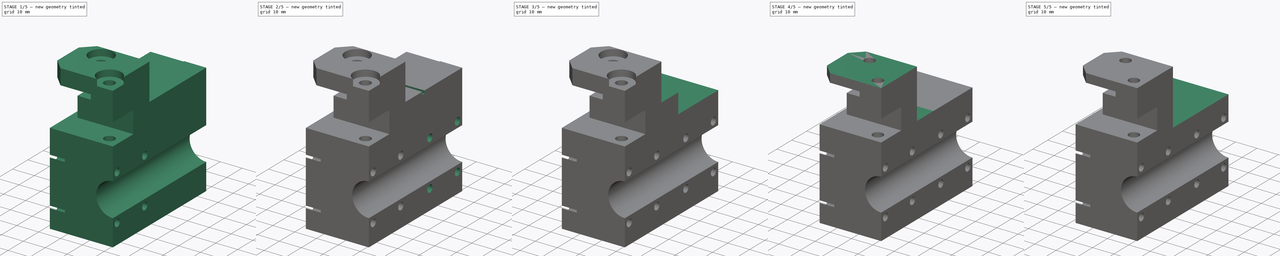
[diagram: build sequence overview — one tinted view per stage of 5, left to right]
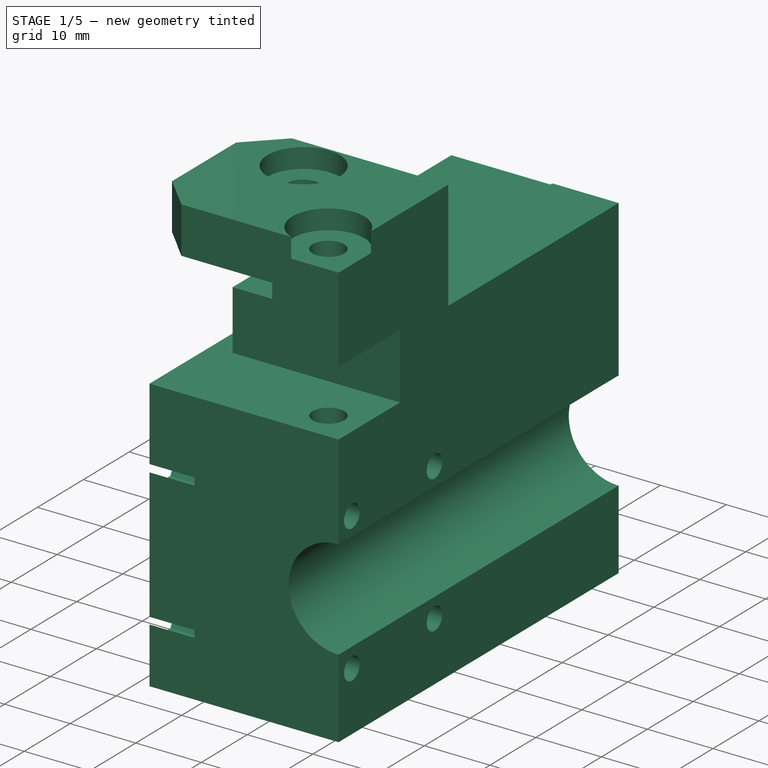
[diagram: stage 1 of 5 — iso view after this stage's code; geometry added in this stage tinted green]
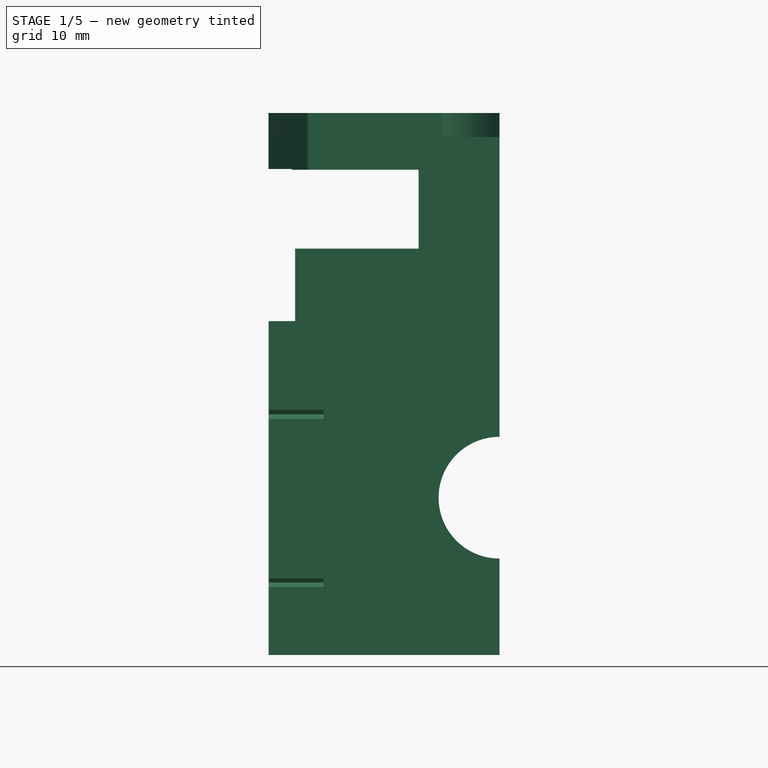
[diagram: stage 1 of 5 — front view after this stage's code; geometry added in this stage tinted green]
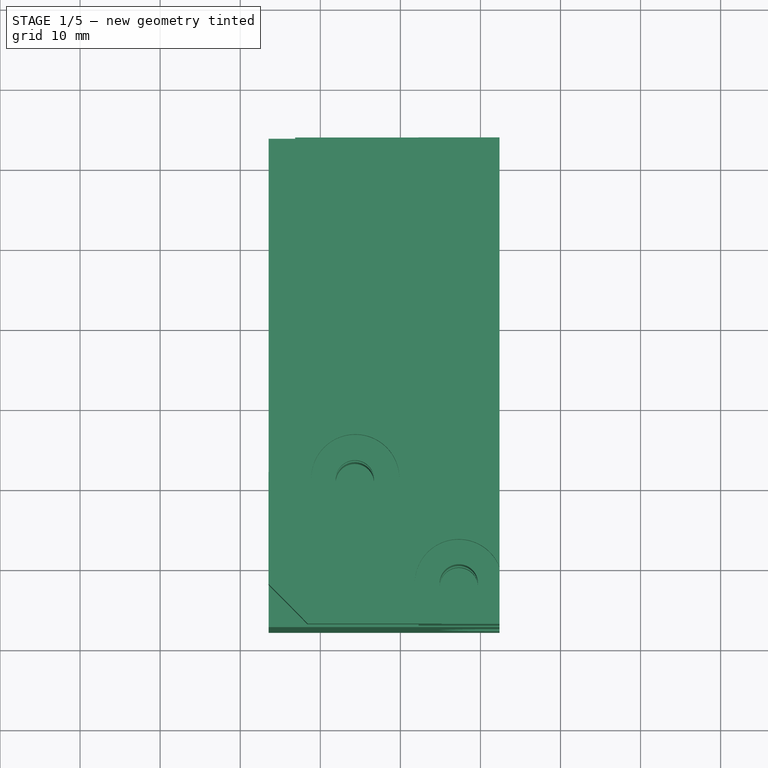
[diagram: stage 1 of 5 — top view after this stage's code; geometry added in this stage tinted green]
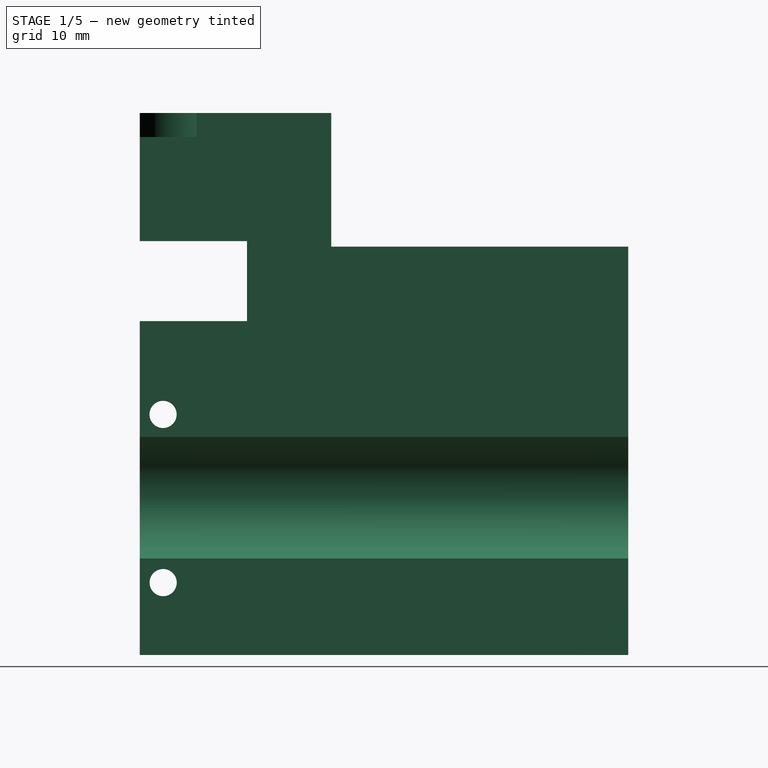
[diagram: stage 1 of 5 — right view after this stage's code; geometry added in this stage tinted green]
FCSTD DOCUMENT  (FreeCAD 2024.2R37179 (Git))
Label: Y_carriage_right
License: All rights reserved
LicenseURL: https://en.wikipedia.org/wiki/All_rights_reserved
objects: PartDesign::Pocket×14, Sketcher::SketchObject×4, PartDesign::Pad×4, Part::Feature×1, PartDesign::FeatureBase×1, PartDesign::Body×1
note: 43 computed .brp shape members not serialized (recipe doc carries the construction recipe); baked Part::Feature solids carry a one-line shape summary decoded from their .brp

FEATURE [Part::Feature] Part__Feature002  label="Y_carriage_right_002"
  Placement = pos=(-153.636,-13.3409,0.0095) rot=(0,0,1;0rad)
  shape: bbox 28.85 x 24 x 67.7 mm, 74 faces (baked)
FEATURE [PartDesign::FeatureBase] BaseFeature
  BaseFeature = -> Part__Feature002
  Suppressed = false
FEATURE [Sketcher::SketchObject] Sketch
  AttachmentSupport = -> [BaseFeature]
  FullyConstrained = false
  MapMode = 5
  Placement = pos=(153.553,0,0) rot=(0.57735,-0.57735,-0.57735;2.0944rad)
  sketch-geometry (4):
    g0: LineSegment StartX=78.8055 StartY=92.8021 StartZ=0 EndX=78.8055 EndY=60.2112 EndZ=0
    g1: LineSegment StartX=78.8055 StartY=60.2112 StartZ=0 EndX=90.7918 EndY=60.2112 EndZ=0
    g2: LineSegment StartX=90.7918 StartY=60.2112 StartZ=0 EndX=90.7918 EndY=92.8021 EndZ=0
    g3: LineSegment StartX=90.7918 StartY=92.8021 StartZ=0 EndX=78.8055 EndY=92.8021 EndZ=0
  constraints (8):
    c: Coincident(g0,g1)
    c: Coincident(g1,g2)
    c: Coincident(g2,g3)
    c: Coincident(g3,g0)
    c: Vertical(g0)
    c: Vertical(g2)
    c: Horizontal(g1)
    c: Horizontal(g3)
FEATURE [PartDesign::Pad] Pad
  BaseFeature = -> BaseFeature
  Direction = (-1,0,0)
  Length = 10
  Length2 = 10
  Profile = -> Sketch
  ReferenceAxis = -> Sketch [N_Axis]
  Refine = true
  Reversed = true
  Suppressed = false
  Type = 0
FEATURE [PartDesign::Pocket] Pocket
  BaseFeature = -> Pad
  Direction = (0,0,-1)
  Length = 44
  Length2 = 5
  Profile = -> Pad [Face36]
  Refine = true
  Suppressed = false
  Type = 0
FEATURE [PartDesign::Pad] Pad001
  BaseFeature = -> Pocket
  Direction = (-4e-16,1,0)
  Length = 37
  Length2 = 10
  Profile = -> Pocket [Face62]
  Refine = true
  Suppressed = false
  Type = 0
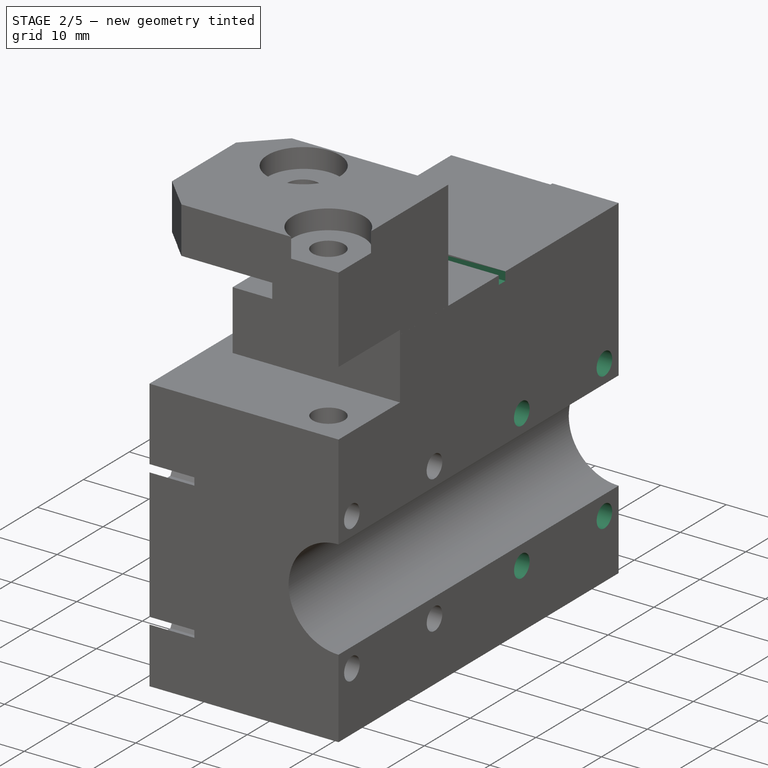
[diagram: stage 2 of 5 — iso view after this stage's code; geometry added in this stage tinted green]
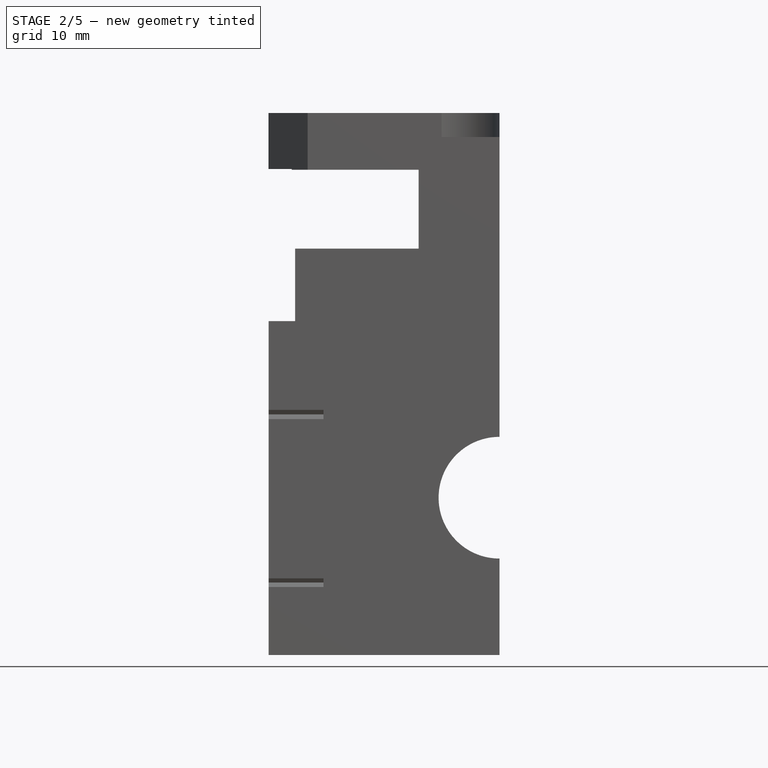
[diagram: stage 2 of 5 — front view after this stage's code; geometry added in this stage tinted green]
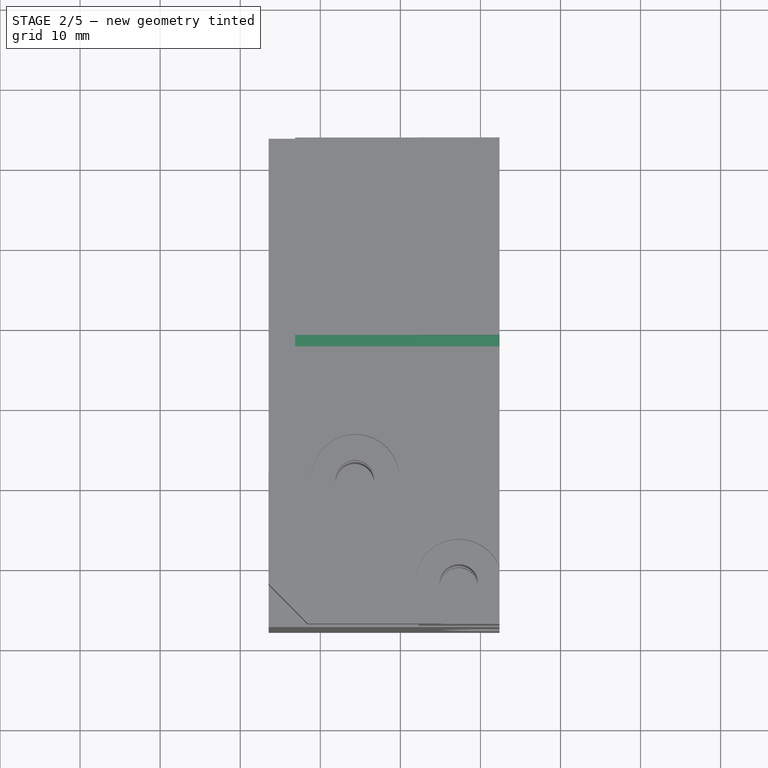
[diagram: stage 2 of 5 — top view after this stage's code; geometry added in this stage tinted green]
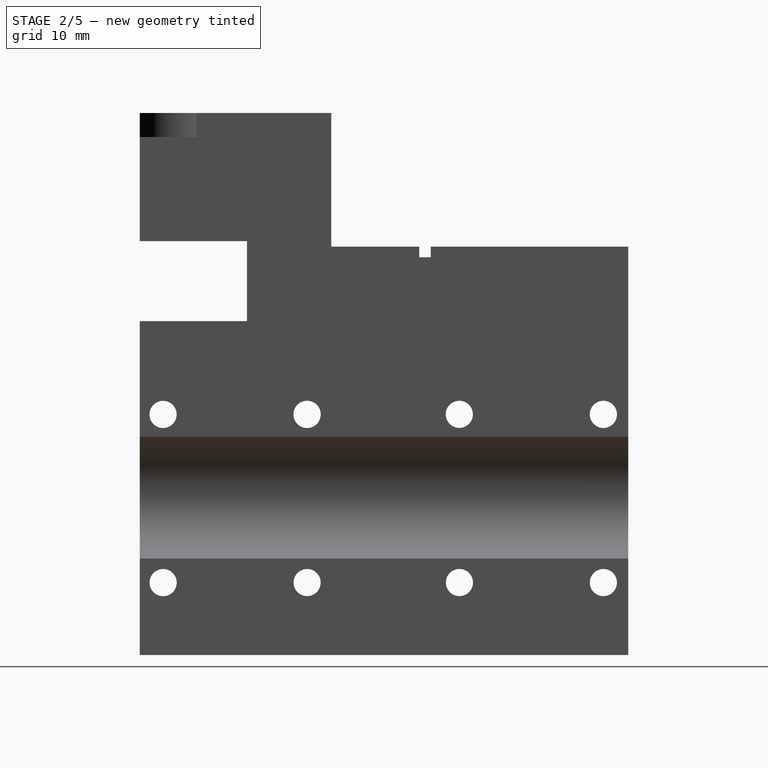
[diagram: stage 2 of 5 — right view after this stage's code; geometry added in this stage tinted green]
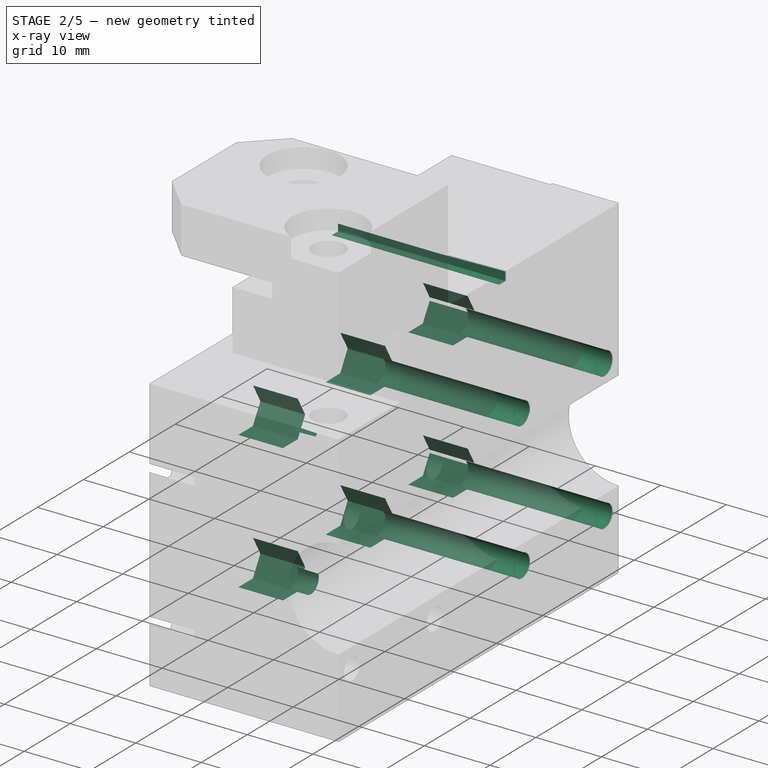
[diagram: stage 2 of 5 — x-ray composite at the iso view; earlier geometry ghosted, this stage's added geometry solid]
FEATURE [PartDesign::Pad] Pad002
  BaseFeature = -> Pad001
  Direction = (-1,0,0)
  Length = 10
  Length2 = 10
  Profile = -> Pad001 [Face58,Face60]
  Refine = true
  Suppressed = false
  Type = 3
  UpToFace = -> Pad001 [Face56]
FEATURE [Sketcher::SketchObject] Sketch001
  AttachmentSupport = -> [Pad002]
  FullyConstrained = false
  MapMode = 5
  Placement = pos=(153.553,7.37e-14,0) rot=(0.57735,-0.57735,-0.57735;2.0944rad)
  sketch-geometry (48):
    g0: Circle CenterX=86.9052 CenterY=88.0523 CenterZ=0 NormalX=0 NormalY=0 NormalZ=1 AngleXU=0 Radius=1.70558
    g1: Circle CenterX=86.9003 CenterY=67.0523 CenterZ=0 NormalX=0 NormalY=0 NormalZ=1 AngleXU=0 Radius=1.69222
    g2: LineSegment StartX=88.5083 StartY=90.863 StartZ=0 EndX=85.2725 EndY=90.846 EndZ=0
    g3: LineSegment StartX=85.2725 StartY=90.846 StartZ=0 EndX=83.6694 EndY=88.0353 EndZ=0
    g4: LineSegment StartX=83.6694 StartY=88.0353 StartZ=0 EndX=85.302 EndY=85.2415 EndZ=0
    g5: LineSegment StartX=85.302 StartY=85.2415 StartZ=0 EndX=88.5378 EndY=85.2585 EndZ=0
    g6: LineSegment StartX=88.5378 StartY=85.2585 StartZ=0 EndX=90.1409 EndY=88.0693 EndZ=0
    g7: LineSegment StartX=90.1409 StartY=88.0693 StartZ=0 EndX=88.5083 EndY=90.863 EndZ=0
    g8: Circle CenterX=86.9052 CenterY=88.0523 CenterZ=0 NormalX=0 NormalY=0 NormalZ=1 AngleXU=0 Radius=3.23581
    g9: LineSegment StartX=88.514 StartY=69.8431 StartZ=0 EndX=85.2903 EndY=69.8453 EndZ=0
    g10: LineSegment StartX=85.2903 StartY=69.8453 StartZ=0 EndX=83.6765 EndY=67.0545 EndZ=0
    g11: LineSegment StartX=83.6765 StartY=67.0545 StartZ=0 EndX=85.2866 EndY=64.2615 EndZ=0
    g12: LineSegment StartX=85.2866 StartY=64.2615 StartZ=0 EndX=88.5104 EndY=64.2594 EndZ=0
    g13: LineSegment StartX=88.5104 StartY=64.2594 StartZ=0 EndX=90.1241 EndY=67.0502 EndZ=0
    g14: LineSegment StartX=90.1241 StartY=67.0502 StartZ=0 EndX=88.514 EndY=69.8431 EndZ=0
    g15: Circle CenterX=86.9003 CenterY=67.0523 CenterZ=0 NormalX=0 NormalY=0 NormalZ=1 AngleXU=0 Radius=3.22377
    g16: Circle CenterX=67.8927 CenterY=88.0604 CenterZ=0 NormalX=0 NormalY=0 NormalZ=1 AngleXU=0 Radius=1.69535
    g17: Circle CenterX=49.9008 CenterY=88.0569 CenterZ=0 NormalX=0 NormalY=0 NormalZ=1 AngleXU=0 Radius=1.69926
    g18: Circle CenterX=67.8804 CenterY=67.0539 CenterZ=0 NormalX=0 NormalY=0 NormalZ=1 AngleXU=0 Radius=1.69387
    g19: Circle CenterX=49.8997 CenterY=67.0509 CenterZ=0 NormalX=0 NormalY=0 NormalZ=1 AngleXU=0 Radius=1.69374
    g20: LineSegment StartX=69.5212 StartY=90.8567 StartZ=0 EndX=66.2853 EndY=90.8689 EndZ=0
    g21: LineSegment StartX=66.2853 StartY=90.8689 StartZ=0 EndX=64.6568 EndY=88.0726 EndZ=0
    g22: LineSegment StartX=64.6568 StartY=88.0726 StartZ=0 EndX=66.2642 EndY=85.2641 EndZ=0
    g23: LineSegment StartX=66.2642 StartY=85.2641 StartZ=0 EndX=69.5001 EndY=85.2519 EndZ=0
    g24: LineSegment StartX=69.5001 StartY=85.2519 StartZ=0 EndX=71.1286 EndY=88.0482 EndZ=0
    g25: LineSegment StartX=71.1286 StartY=88.0482 StartZ=0 EndX=69.5212 EndY=90.8567 EndZ=0
    g26: Circle CenterX=67.8927 CenterY=88.0604 CenterZ=0 NormalX=0 NormalY=0 NormalZ=1 AngleXU=0 Radius=3.23595
    g27: LineSegment StartX=51.5083 StartY=90.863 StartZ=0 EndX=48.2744 EndY=90.852 EndZ=0
    g28: LineSegment StartX=48.2744 StartY=90.852 StartZ=0 EndX=46.667 EndY=88.046 EndZ=0
    g29: LineSegment StartX=46.667 StartY=88.046 StartZ=0 EndX=48.2934 EndY=85.2508 EndZ=0
    g30: LineSegment StartX=48.2934 StartY=85.2508 StartZ=0 EndX=51.5273 EndY=85.2618 EndZ=0
    g31: LineSegment StartX=51.5273 StartY=85.2618 StartZ=0 EndX=53.1347 EndY=88.0679 EndZ=0
    g32: LineSegment StartX=53.1347 StartY=88.0679 StartZ=0 EndX=51.5083 EndY=90.863 EndZ=0
    g33: Circle CenterX=49.9008 CenterY=88.0569 CenterZ=0 NormalX=0 NormalY=0 NormalZ=1 AngleXU=0 Radius=3.23389
    g34: LineSegment StartX=51.514 StartY=69.8431 StartZ=0 EndX=48.2888 EndY=69.8451 EndZ=0
    g35: LineSegment StartX=48.2888 StartY=69.8451 StartZ=0 EndX=46.6744 EndY=67.0529 EndZ=0
    g36: LineSegment StartX=46.6744 StartY=67.0529 StartZ=0 EndX=48.2854 EndY=64.2587 EndZ=0
    g37: LineSegment StartX=48.2854 StartY=64.2587 StartZ=0 EndX=51.5107 EndY=64.2568 EndZ=0
    g38: LineSegment StartX=51.5107 StartY=64.2568 StartZ=0 EndX=53.125 EndY=67.049 EndZ=0
    g39: LineSegment StartX=53.125 StartY=67.049 StartZ=0 EndX=51.514 EndY=69.8431 EndZ=0
    g40: Circle CenterX=49.8997 CenterY=67.0509 CenterZ=0 NormalX=0 NormalY=0 NormalZ=1 AngleXU=0 Radius=3.22529
    g41: LineSegment StartX=69.5096 StartY=69.8402 StartZ=0 EndX=66.282 EndY=69.858 EndZ=0
    g42: LineSegment StartX=66.282 StartY=69.858 StartZ=0 EndX=64.6528 EndY=67.0718 EndZ=0
    g43: LineSegment StartX=64.6528 StartY=67.0718 StartZ=0 EndX=66.2511 EndY=64.2677 EndZ=0
    g44: LineSegment StartX=66.2511 StartY=64.2677 StartZ=0 EndX=69.4787 EndY=64.2499 EndZ=0
    g45: LineSegment StartX=69.4787 StartY=64.2499 StartZ=0 EndX=71.1079 EndY=67.0361 EndZ=0
    g46: LineSegment StartX=71.1079 StartY=67.0361 StartZ=0 EndX=69.5096 EndY=69.8402 EndZ=0
    g47: Circle CenterX=67.8804 CenterY=67.0539 CenterZ=0 NormalX=0 NormalY=0 NormalZ=1 AngleXU=0 Radius=3.22762
  constraints (84):
    c: Coincident(g2,g3)
    c: Coincident(g3,g4)
    c: Coincident(g4,g5)
    c: Coincident(g5,g6)
    c: Coincident(g6,g7)
    c: Coincident(g7,g2)
    c: Equal(g2, g3-g7) x5
    c: PointOnObject(g2,g8)
    c: PointOnObject(g3,g8)
    c: PointOnObject(g4,g8)
    c: PointOnObject(g5,g8)
    c: PointOnObject(g6,g8)
    c: PointOnObject(g7,g8)
    c: Coincident(g8,g0)
    c: Coincident(g9,g10)
    c: Coincident(g10,g11)
    c: Coincident(g11,g12)
    c: Coincident(g12,g13)
    c: Coincident(g13,g14)
    c: Coincident(g14,g9)
    c: Equal(g9, g10-g14) x5
    c: PointOnObject(g9,g15)
    c: PointOnObject(g10,g15)
    c: PointOnObject(g11,g15)
    c: PointOnObject(g12,g15)
    c: PointOnObject(g13,g15)
    c: PointOnObject(g14,g15)
    c: Coincident(g15,g1)
    c: Coincident(g20,g21)
    c: Coincident(g21,g22)
    c: Coincident(g22,g23)
    c: Coincident(g23,g24)
    c: Coincident(g24,g25)
    c: Coincident(g25,g20)
    c: Equal(g20, g21-g25) x5
    c: PointOnObject(g20,g26)
    c: PointOnObject(g21,g26)
    c: PointOnObject(g22,g26)
    c: PointOnObject(g23,g26)
    c: PointOnObject(g24,g26)
    c: PointOnObject(g25,g26)
    c: Coincident(g26,g16)
    c: Coincident(g27,g28)
    c: Coincident(g28,g29)
    c: Coincident(g29,g30)
    c: Coincident(g30,g31)
    c: Coincident(g31,g32)
    c: Coincident(g32,g27)
    c: Equal(g27, g28-g32) x5
    c: PointOnObject(g27,g33)
    c: PointOnObject(g28,g33)
    c: PointOnObject(g29,g33)
    c: PointOnObject(g30,g33)
    c: PointOnObject(g31,g33)
    c: PointOnObject(g32,g33)
    c: Coincident(g33,g17)
    c: Coincident(g34,g35)
    c: Coincident(g35,g36)
    c: Coincident(g36,g37)
    c: Coincident(g37,g38)
    c: Coincident(g38,g39)
    c: Coincident(g39,g34)
    c: Equal(g34, g35-g39) x5
    c: PointOnObject(g34,g40)
    c: PointOnObject(g35,g40)
    c: PointOnObject(g36,g40)
    c: PointOnObject(g37,g40)
    c: PointOnObject(g38,g40)
    c: PointOnObject(g39,g40)
    c: Coincident(g40,g19)
    c: Coincident(g41,g42)
    c: Coincident(g42,g43)
    c: Coincident(g43,g44)
    c: Coincident(g44,g45)
    c: Coincident(g45,g46)
    c: Coincident(g46,g41)
    c: Equal(g41, g42-g46) x5
    c: PointOnObject(g41,g47)
    c: PointOnObject(g42,g47)
    c: PointOnObject(g43,g47)
    c: PointOnObject(g44,g47)
    c: PointOnObject(g45,g47)
    c: PointOnObject(g46,g47)
    c: Coincident(g47,g18)
FEATURE [PartDesign::Pocket] Pocket001
  BaseFeature = -> Pad002
  Direction = (1,0,0)
  Length = 6.847
  Length2 = 5
  Profile = -> Sketch001
  ReferenceAxis = -> Sketch001 [N_Axis]
  Refine = true
  Suppressed = false
  Type = 0
FEATURE [PartDesign::Pocket] Pocket002
  BaseFeature = -> Pocket001
  Direction = (1,5e-16,0)
  Length = 45
  Length2 = 5
  Profile = -> Pocket001 [Face102,Face103,Face109,Face111,Face112,Face110]
  Refine = true
  Suppressed = false
  Type = 0
FEATURE [Sketcher::SketchObject] Sketch002
  AttachmentOffset = pos=(-11,0,0) rot=(0,0,1;0rad)
  AttachmentSupport = -> [Pocket002]
  FullyConstrained = false
  MapMode = 5
  Placement = pos=(156.862,11,0) rot=(0.57735,-0.57735,-0.57735;2.0944rad)
  sketch-geometry (4):
    g0: LineSegment StartX=83.8923 StartY=109.003 StartZ=0 EndX=82.4689 EndY=109.003 EndZ=0
    g1: LineSegment StartX=82.4689 StartY=109.003 StartZ=0 EndX=82.4689 EndY=107.682 EndZ=0
    g2: LineSegment StartX=82.4689 StartY=107.682 StartZ=0 EndX=83.8923 EndY=107.682 EndZ=0
    g3: LineSegment StartX=83.8923 StartY=107.682 StartZ=0 EndX=83.8923 EndY=109.003 EndZ=0
  constraints (8):
    c: Coincident(g0,g1)
    c: Coincident(g1,g2)
    c: Coincident(g2,g3)
    c: Coincident(g3,g0)
    c: Horizontal(g0)
    c: Horizontal(g2)
    c: Vertical(g1)
    c: Vertical(g3)
FEATURE [PartDesign::Pocket] Pocket003
  BaseFeature = -> Pocket002
  Direction = (1,0,0)
  Length = 38
  Length2 = 5
  Profile = -> Sketch002
  ReferenceAxis = -> Sketch002 [N_Axis]
  Refine = true
  Suppressed = false
  Type = 0
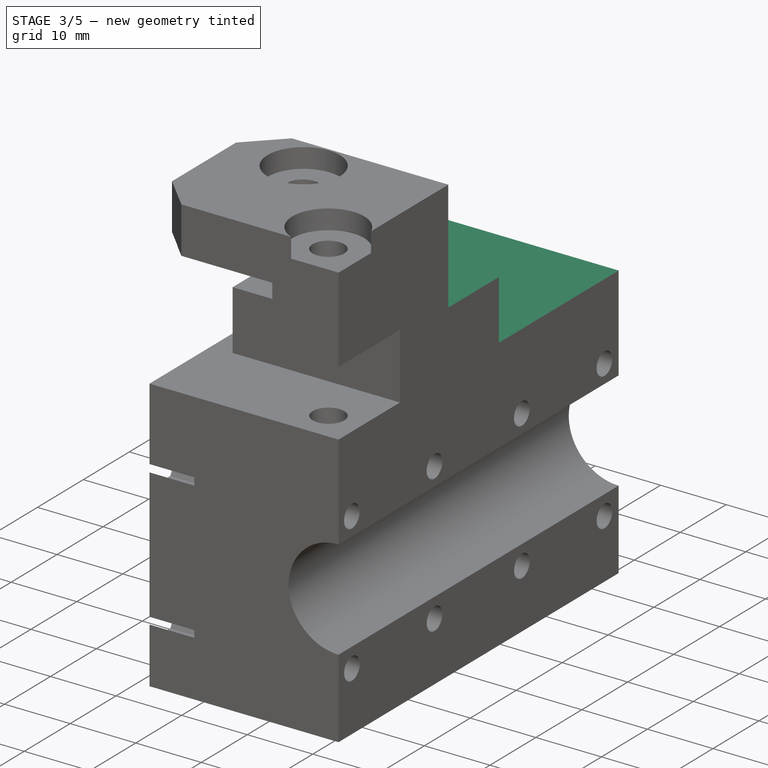
[diagram: stage 3 of 5 — iso view after this stage's code; geometry added in this stage tinted green]
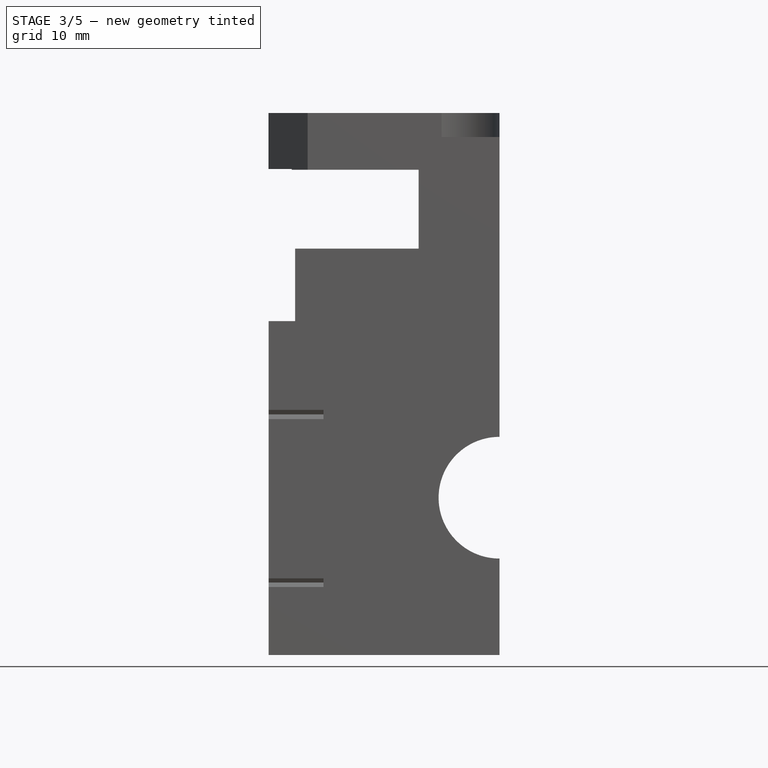
[diagram: stage 3 of 5 — front view after this stage's code; geometry added in this stage tinted green]
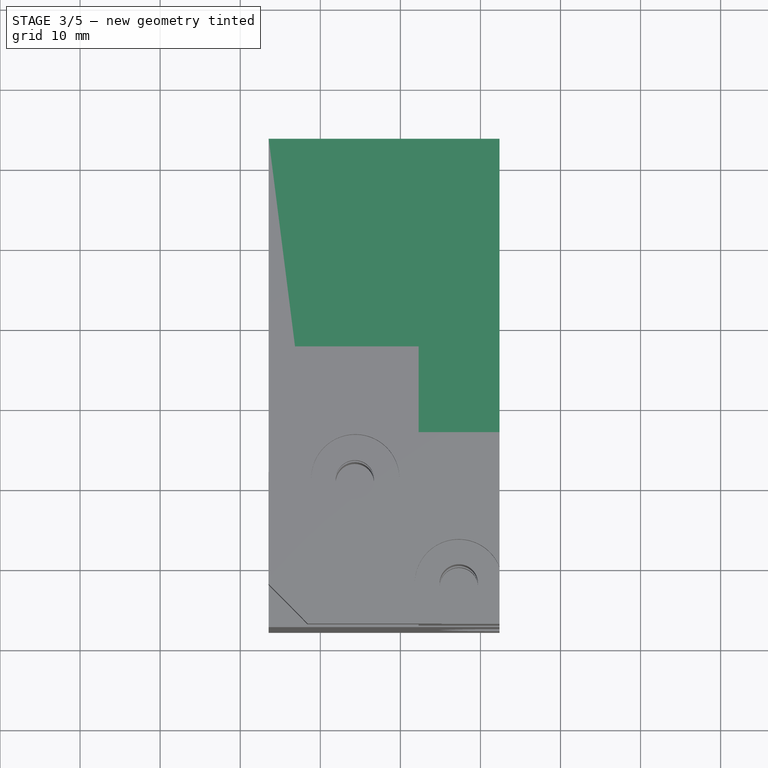
[diagram: stage 3 of 5 — top view after this stage's code; geometry added in this stage tinted green]
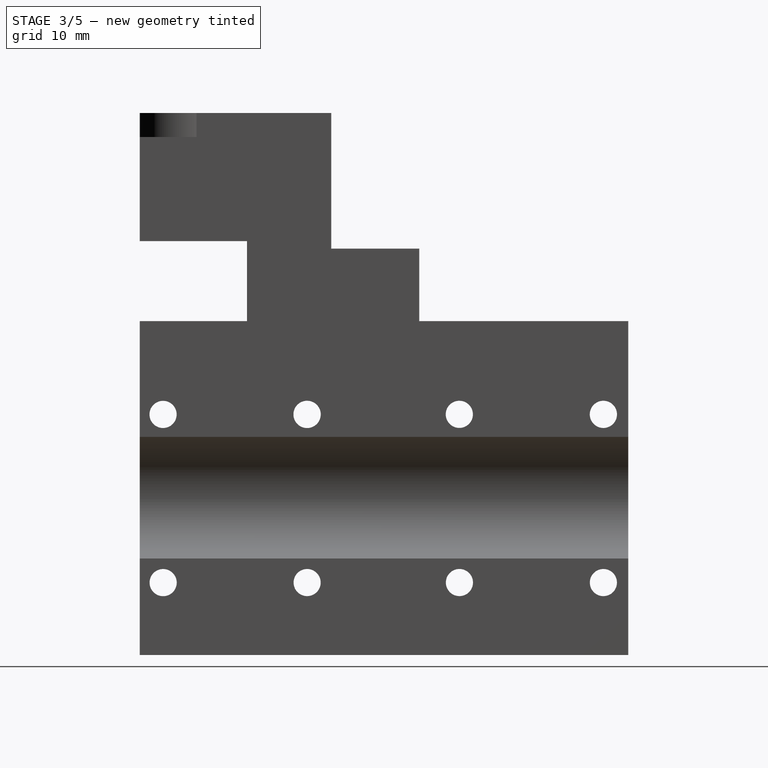
[diagram: stage 3 of 5 — right view after this stage's code; geometry added in this stage tinted green]
FEATURE [PartDesign::Pocket] Pocket004
  BaseFeature = -> Pocket003
  Direction = (0,0,-1)
  Length = 0
  Length2 = 5
  Profile = -> Pocket003 [Face28]
  Refine = true
  Suppressed = false
  Type = 3
  UpToFace = -> Pocket003 [Face40]
FEATURE [PartDesign::Pocket] Pocket005
  BaseFeature = -> Pocket004
  Direction = (0,1,0)
  Length = 42
  Length2 = 5
  Profile = -> Pocket004 [Face33,Face34]
  Refine = true
  Suppressed = false
  Type = 0
FEATURE [PartDesign::Pocket] Pocket006
  BaseFeature = -> Pocket005
  Direction = (0,0,-1)
  Length = 0
  Length2 = 5
  Profile = -> Pocket005 [Face10]
  Refine = true
  Suppressed = false
  Type = 3
  UpToFace = -> Pocket005 [Face25]
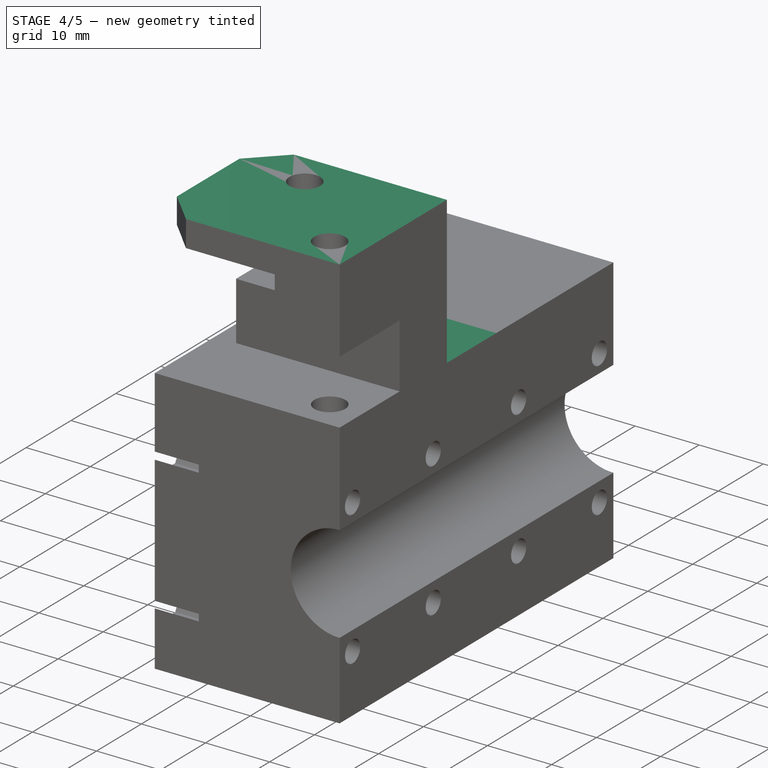
[diagram: stage 4 of 5 — iso view after this stage's code; geometry added in this stage tinted green]
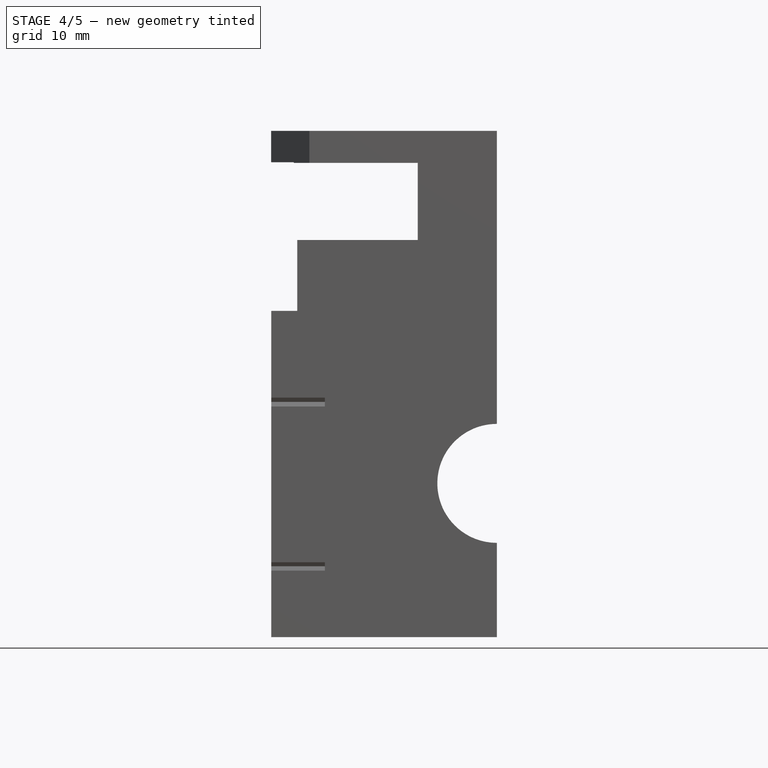
[diagram: stage 4 of 5 — front view after this stage's code; geometry added in this stage tinted green]
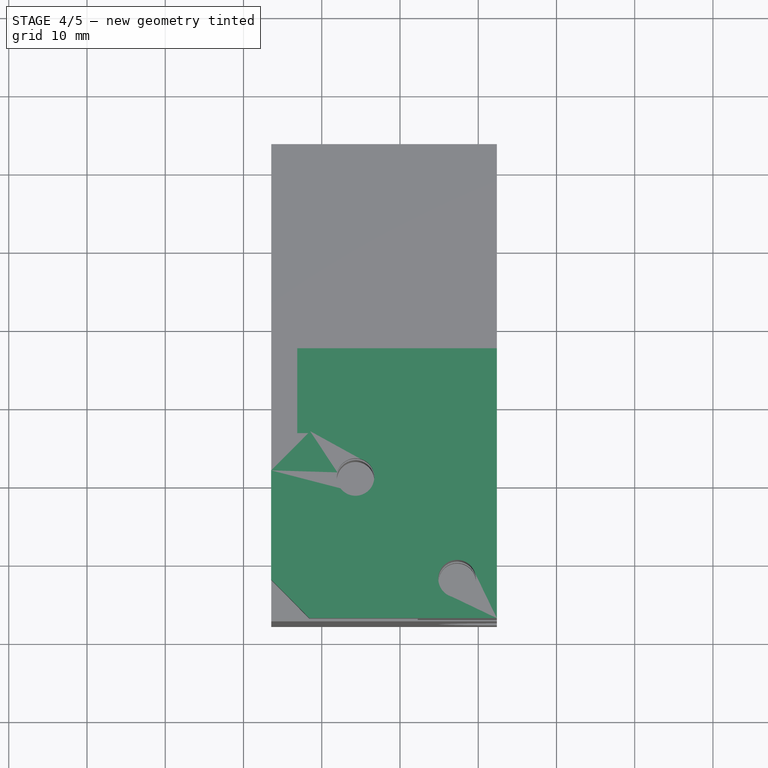
[diagram: stage 4 of 5 — top view after this stage's code; geometry added in this stage tinted green]
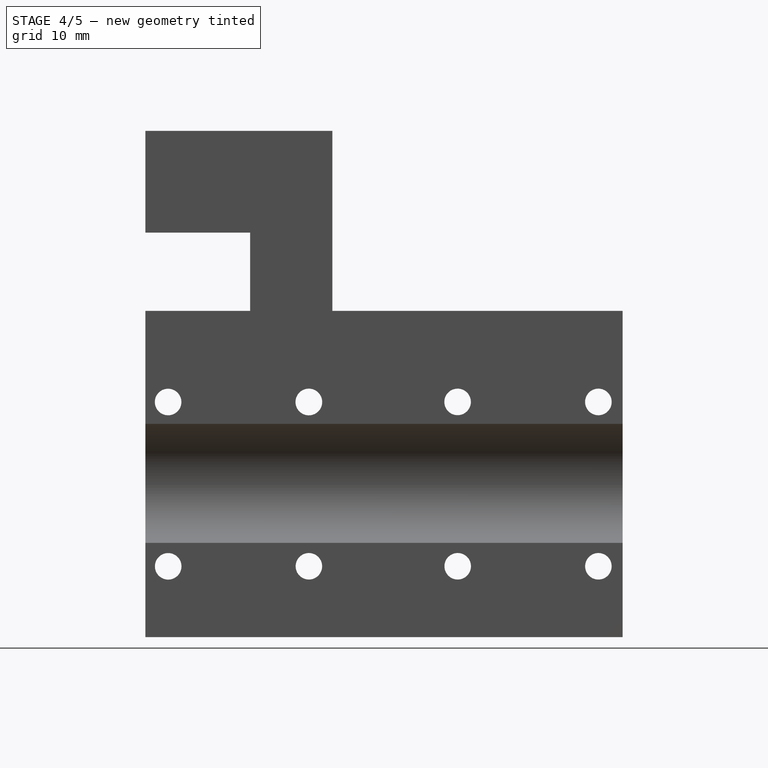
[diagram: stage 4 of 5 — right view after this stage's code; geometry added in this stage tinted green]
FEATURE [PartDesign::Pocket] Pocket007
  BaseFeature = -> Pocket006
  Direction = (-3e-16,1.6e-15,-1)
  Length = 0
  Length2 = 5
  Profile = -> Pocket006 [Face1]
  Refine = true
  Suppressed = false
  Type = 3
  UpToFace = -> Pocket006 [Face19]
FEATURE [PartDesign::Pad] Pad003
  BaseFeature = -> Pocket007
  Direction = (1,0,0)
  Length = 10
  Length2 = 10
  Profile = -> Pocket007 [Face2,Face1]
  Refine = true
  Suppressed = false
  Type = 3
  UpToFace = -> Pocket007 [Face14]
FEATURE [Sketcher::SketchObject] Sketch003
  AttachmentSupport = -> [Pad003]
  FullyConstrained = false
  MapMode = 5
  Placement = pos=(153.553,7.37e-14,0) rot=(0.57735,-0.57735,-0.57735;2.0944rad)
  sketch-geometry (2):
    g0: Circle CenterX=58.9902 CenterY=91.995 CenterZ=0 NormalX=0 NormalY=0 NormalZ=1 AngleXU=0 Radius=4.09551
    g1: Circle CenterX=59.0222 CenterY=64.0142 CenterZ=0 NormalX=0 NormalY=0 NormalZ=1 AngleXU=0 Radius=4.09278
FEATURE [PartDesign::Pocket] Pocket008
  BaseFeature = -> Pad003
  Direction = (1,0,0)
  Length = 28.147
  Length2 = 5
  Profile = -> Sketch003
  ReferenceAxis = -> Sketch003 [N_Axis]
  Refine = true
  Suppressed = false
  Type = 0
FEATURE [PartDesign::Pocket] Pocket009
  BaseFeature = -> Pocket008
  Direction = (0,-1,0)
  Length = 0
  Length2 = 5
  Profile = -> Pocket008 [Face3]
  Refine = true
  Suppressed = false
  Type = 3
  UpToFace = -> Pocket008 [Face12]
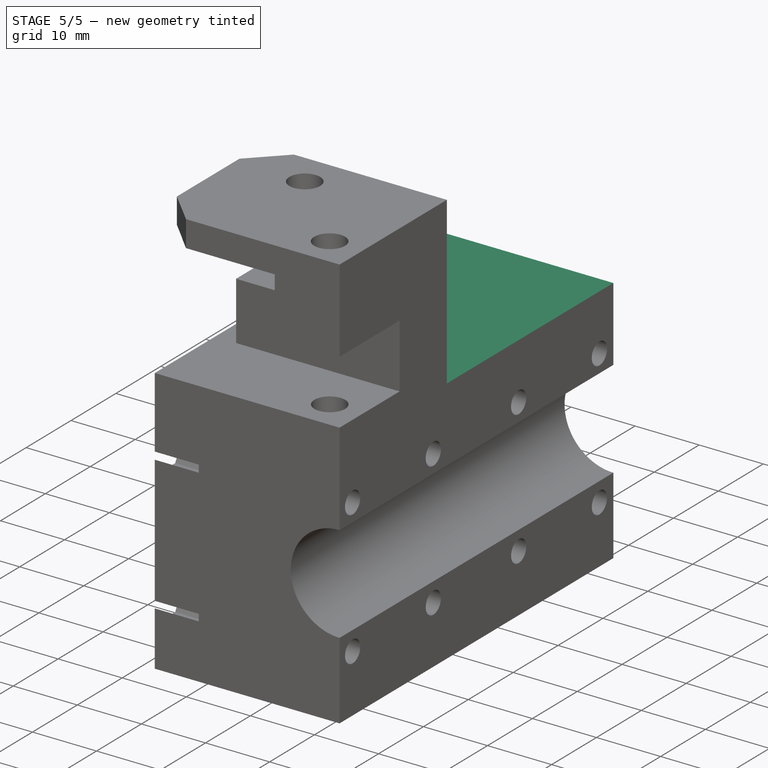
[diagram: stage 5 of 5 — iso view after this stage's code; geometry added in this stage tinted green]
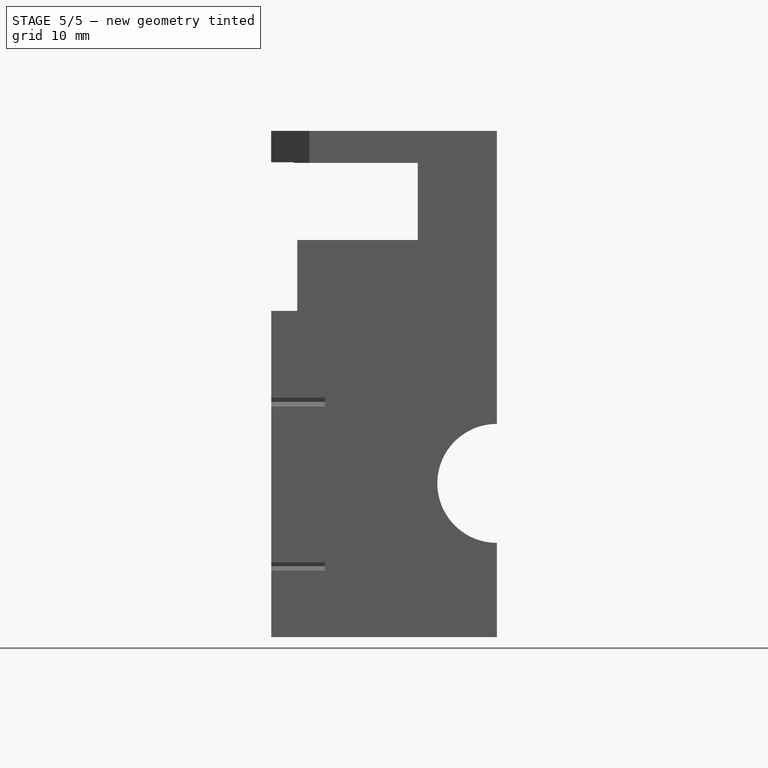
[diagram: stage 5 of 5 — front view after this stage's code; geometry added in this stage tinted green]
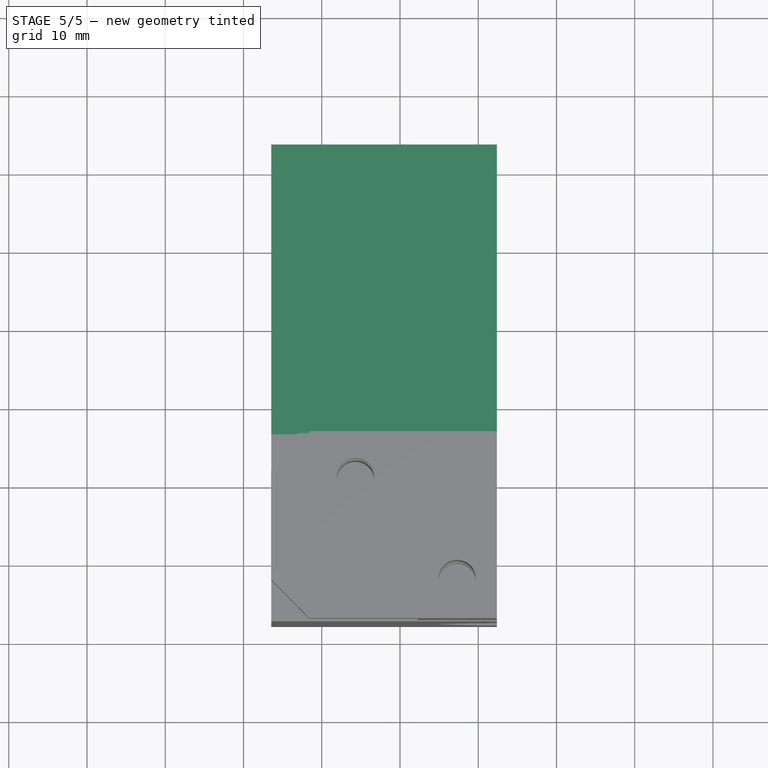
[diagram: stage 5 of 5 — top view after this stage's code; geometry added in this stage tinted green]
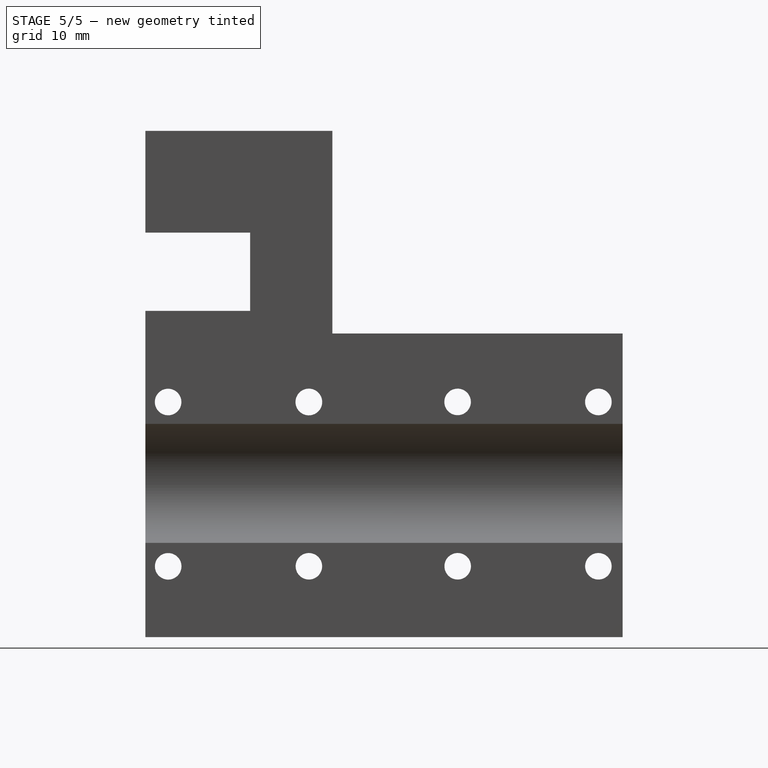
[diagram: stage 5 of 5 — right view after this stage's code; geometry added in this stage tinted green]
FEATURE [PartDesign::Pocket] Pocket010
  BaseFeature = -> Pocket009
  Direction = (-1.6e-15,0,-1)
  Length = 1.093
  Length2 = 5
  Profile = -> Pocket009 [Face11]
  Refine = true
  Suppressed = false
  Type = 0
FEATURE [PartDesign::Pocket] Pocket011
  BaseFeature = -> Pocket010
  Direction = (-1,-4e-16,1.6e-15)
  Length = 5
  Length2 = 5
  Profile = -> Pocket010 [Face10]
  Refine = true
  Suppressed = false
  Type = 0
FEATURE [PartDesign::Pocket] Pocket012
  BaseFeature = -> Pocket011
  Direction = (0,1,0)
  Length = 54
  Length2 = 5
  Profile = -> Pocket011 [Face107]
  Refine = true
  Suppressed = false
  Type = 0
FEATURE [PartDesign::Pocket] Pocket013
  BaseFeature = -> Pocket012
  Direction = (-1.8e-15,-2e-16,-1)
  Length = 1.8
  Length2 = 5
  Profile = -> Pocket012 [Face105]
  Refine = true
  Suppressed = false
  Type = 0
FEATURE [PartDesign::Body] Body
  BaseFeature = -> Part__Feature002
  Group = -> [BaseFeature,Sketch,Pad,Pocket,Pad001,Pad002,Sketch001,Pocket001,Pocket002,Sketch002,Pocket003,Pocket004,Pocket005,Pocket006,Pocket007,Pad003,Sketch003,Pocket008,Pocket009,Pocket010,Pocket011,Pocket012,Pocket013]
  Origin = -> Origin002
  Tip = -> Pocket013
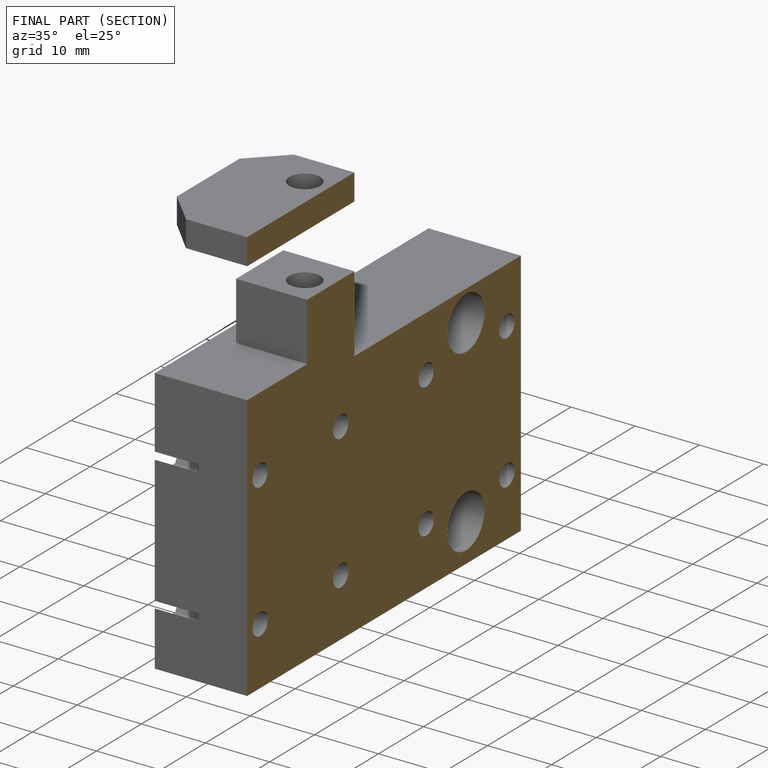
[diagram: finished part — half-section view (interior)]
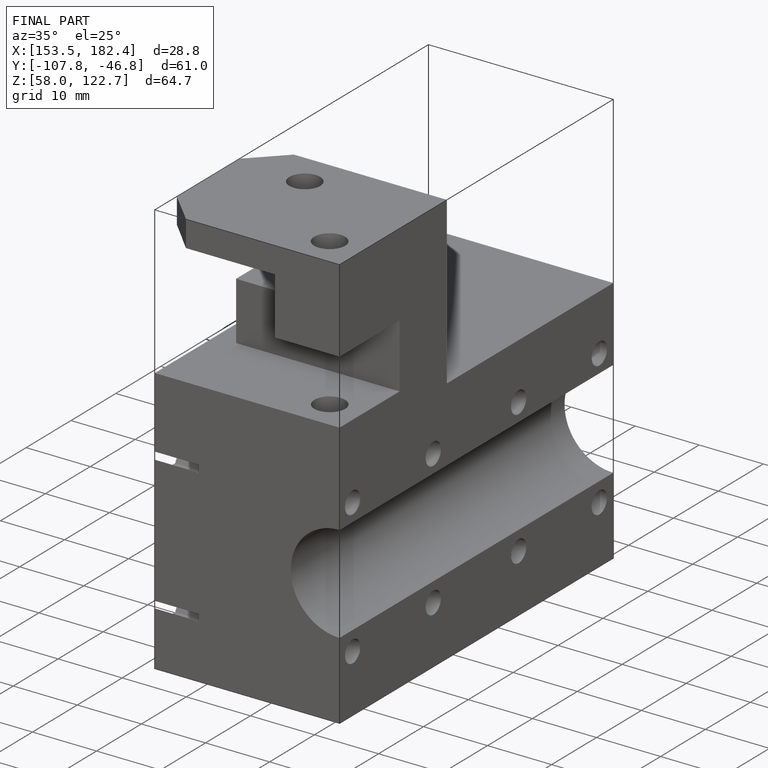
[diagram: finished part — iso view with bounding-box wireframe]
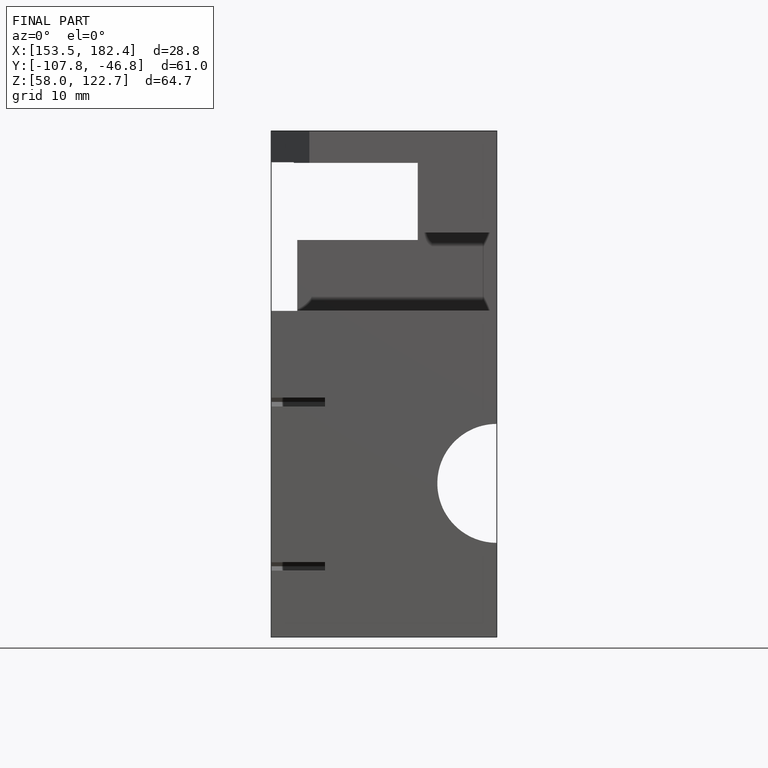
[diagram: finished part — front view with bounding-box wireframe]
